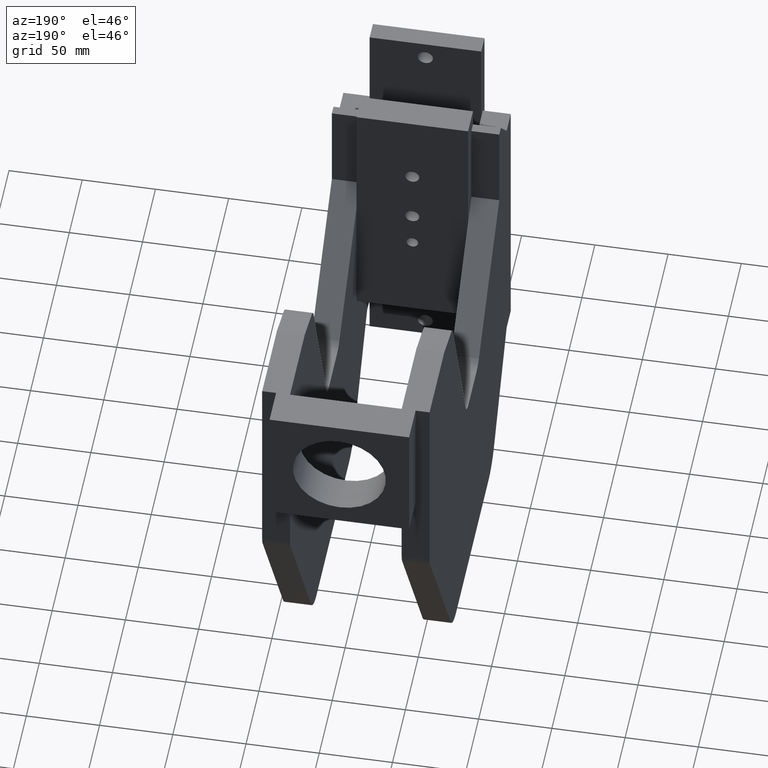
[diagram: clean part render]
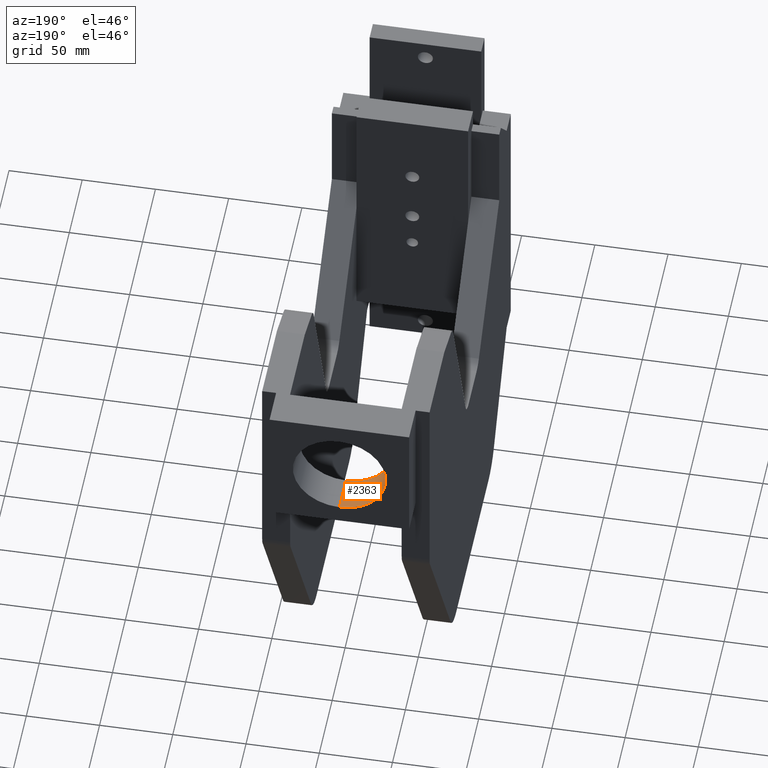
[diagram: same view with one face highlighted and labeled with its STEP entity id]
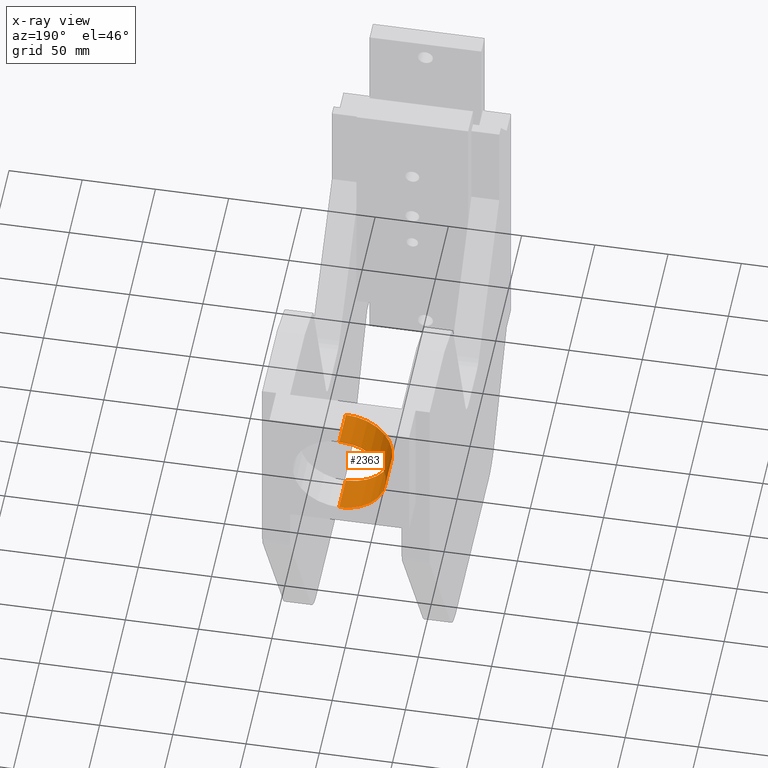
[diagram: x-ray of the same camera — body ghosted, the highlighted face saturated]
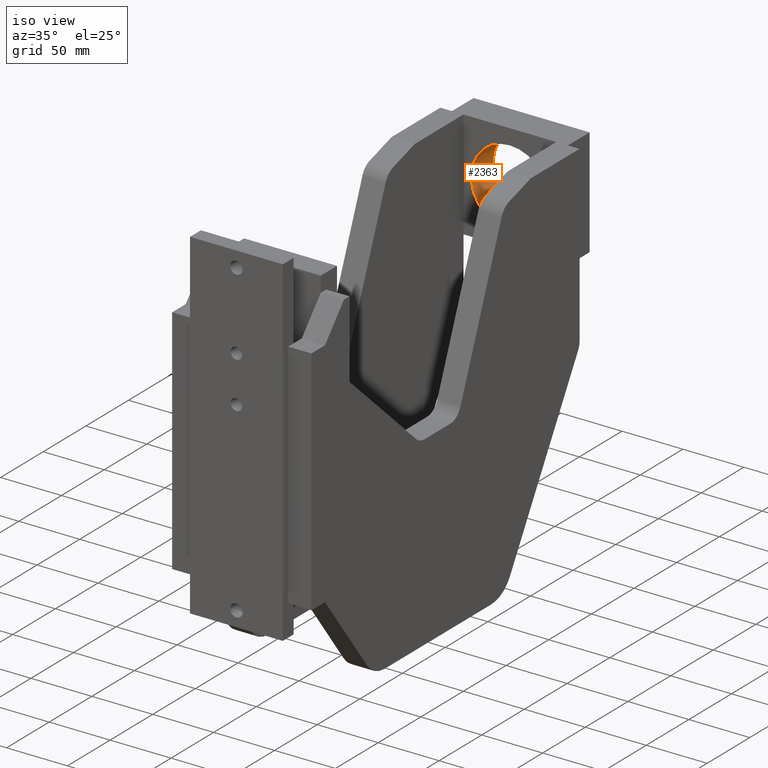
[diagram: same view with one face highlighted and labeled with its STEP entity id]
A machine part, auxiliary view. The second image highlights one B-rep face of the part: STEP entity #2363.
The next image is the same camera in x-ray: the body ghosted, the highlighted face saturated — about 0% of this face is hidden behind the body in this view.
A second angle (iso view) of the same face is appended — the face is thin or edge-on in the first view.
In plain terms, the highlighted cylindrical surface (partial cylindrical patch) has radius 31.75 mm, axis along (0, 1, 0).
Its self-contained STEP definition (entity closure, byte-faithful):
#328 = EDGE_LOOP ( 'NONE', ( #2361, #2364, #2333, #2277 ) ) ;
#1527 = DIRECTION ( 'NONE',  ( 0.0000000000000000000, 1.000000000000000000, 0.0000000000000000000 ) ) ;
#1528 = VECTOR ( 'NONE', #1527, 39.37007874015748100 ) ;
#1529 = CARTESIAN_POINT ( 'NONE',  ( 0.0000000000000000000, 0.0000000000000000000, 1.250000000000000000 ) ) ;
#1530 = LINE ( 'NONE', #1529, #1528 ) ;
#1587 = DIRECTION ( 'NONE',  ( 0.0000000000000000000, 1.000000000000000000, 0.0000000000000000000 ) ) ;
#1588 = VECTOR ( 'NONE', #1587, 39.37007874015748100 ) ;
#1589 = CARTESIAN_POINT ( 'NONE',  ( 1.530808498934191600E-016, 0.0000000000000000000, -1.250000000000000000 ) ) ;
#1590 = LINE ( 'NONE', #1589, #1588 ) ;
#1600 = DIRECTION ( 'NONE',  ( 0.0000000000000000000, 0.0000000000000000000, 1.000000000000000000 ) ) ;
#1601 = DIRECTION ( 'NONE',  ( 0.0000000000000000000, 1.000000000000000000, 0.0000000000000000000 ) ) ;
#1602 = CARTESIAN_POINT ( 'NONE',  ( 0.0000000000000000000, 0.0000000000000000000, 0.0000000000000000000 ) ) ;
#1603 = AXIS2_PLACEMENT_3D ( 'NONE', #1602, #1601, #1600 ) ;
#1604 = CIRCLE ( 'NONE', #1603, 1.250000000000000000 ) ;
#1608 = CARTESIAN_POINT ( 'NONE',  ( 0.0000000000000000000, 0.9999999999999992200, 1.250000000000000000 ) ) ;
#1617 = DIRECTION ( 'NONE',  ( 0.0000000000000000000, 0.0000000000000000000, 1.000000000000000000 ) ) ;
#1618 = DIRECTION ( 'NONE',  ( 0.0000000000000000000, 1.000000000000000000, 0.0000000000000000000 ) ) ;
#1619 = CARTESIAN_POINT ( 'NONE',  ( 0.0000000000000000000, 0.9999999999999992200, 0.0000000000000000000 ) ) ;
#1620 = AXIS2_PLACEMENT_3D ( 'NONE', #1619, #1618, #1617 ) ;
#1621 = CIRCLE ( 'NONE', #1620, 1.250000000000000000 ) ;
#1636 = CARTESIAN_POINT ( 'NONE',  ( 1.530808498934191600E-016, 0.0000000000000000000, -1.250000000000000000 ) ) ;
#1637 = CARTESIAN_POINT ( 'NONE',  ( 1.530808498934191600E-016, 0.9999999999999992200, -1.250000000000000000 ) ) ;
#1639 = DIRECTION ( 'NONE',  ( 0.0000000000000000000, 0.0000000000000000000, 1.000000000000000000 ) ) ;
#1640 = DIRECTION ( 'NONE',  ( 0.0000000000000000000, 1.000000000000000000, 0.0000000000000000000 ) ) ;
#1641 = CARTESIAN_POINT ( 'NONE',  ( 0.0000000000000000000, 0.0000000000000000000, 0.0000000000000000000 ) ) ;
#1642 = AXIS2_PLACEMENT_3D ( 'NONE', #1641, #1640, #1639 ) ;
#1643 = CYLINDRICAL_SURFACE ( 'NONE', #1642, 1.250000000000000000 ) ;
#1644 = FACE_OUTER_BOUND ( 'NONE', #328, .T. ) ;
#1666 = CARTESIAN_POINT ( 'NONE',  ( 0.0000000000000000000, 0.0000000000000000000, 1.250000000000000000 ) ) ;
#2277 = ORIENTED_EDGE ( 'NONE', *, *, #2280, .F. ) ;
#2280 = EDGE_CURVE ( 'NONE', #2355, #2350, #1530, .T. ) ;
#2318 = EDGE_CURVE ( 'NONE', #2371, #2370, #1590, .T. ) ;
#2333 = ORIENTED_EDGE ( 'NONE', *, *, #2344, .T. ) ;
#2344 = EDGE_CURVE ( 'NONE', #2370, #2350, #1621, .T. ) ;
#2350 = VERTEX_POINT ( 'NONE', #1608 ) ;
#2353 = EDGE_CURVE ( 'NONE', #2371, #2355, #1604, .T. ) ;
#2355 = VERTEX_POINT ( 'NONE', #1666 ) ;
#2361 = ORIENTED_EDGE ( 'NONE', *, *, #2353, .F. ) ;
#2363 = ADVANCED_FACE ( 'NONE', ( #1644 ), #1643, .F. ) ;
#2364 = ORIENTED_EDGE ( 'NONE', *, *, #2318, .T. ) ;
#2370 = VERTEX_POINT ( 'NONE', #1637 ) ;
#2371 = VERTEX_POINT ( 'NONE', #1636 ) ;